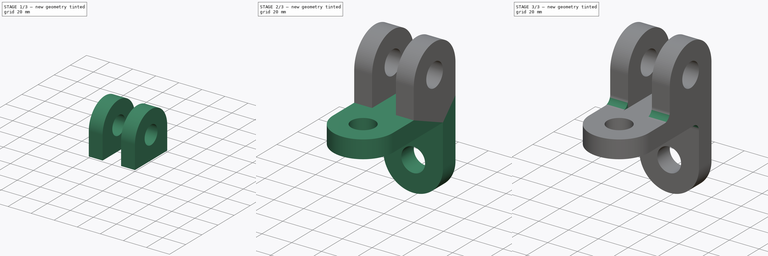
[diagram: build sequence overview — one tinted view per stage of 3, left to right]
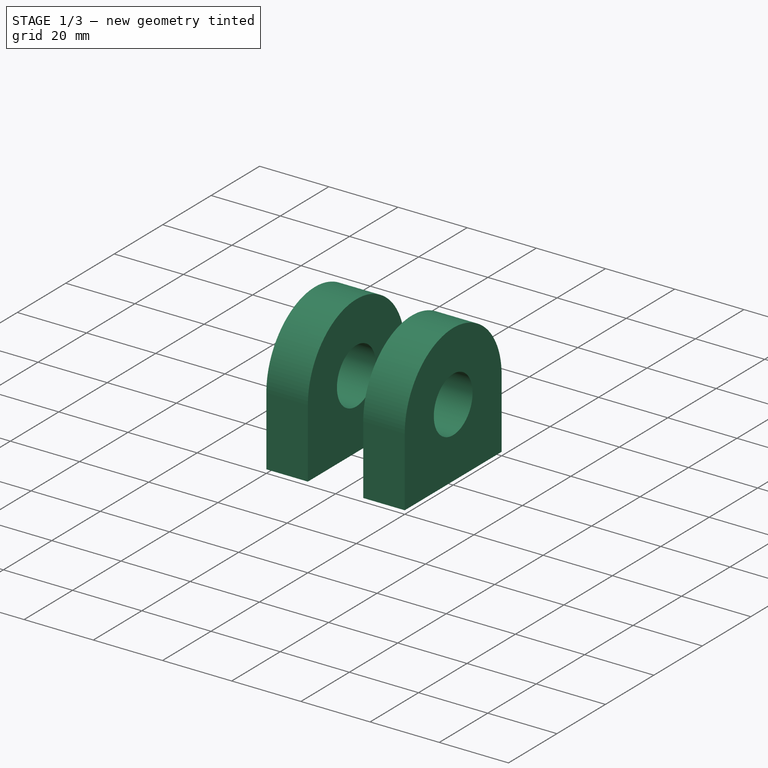
[diagram: stage 1 of 3 — iso view after this stage's code; geometry added in this stage tinted green]
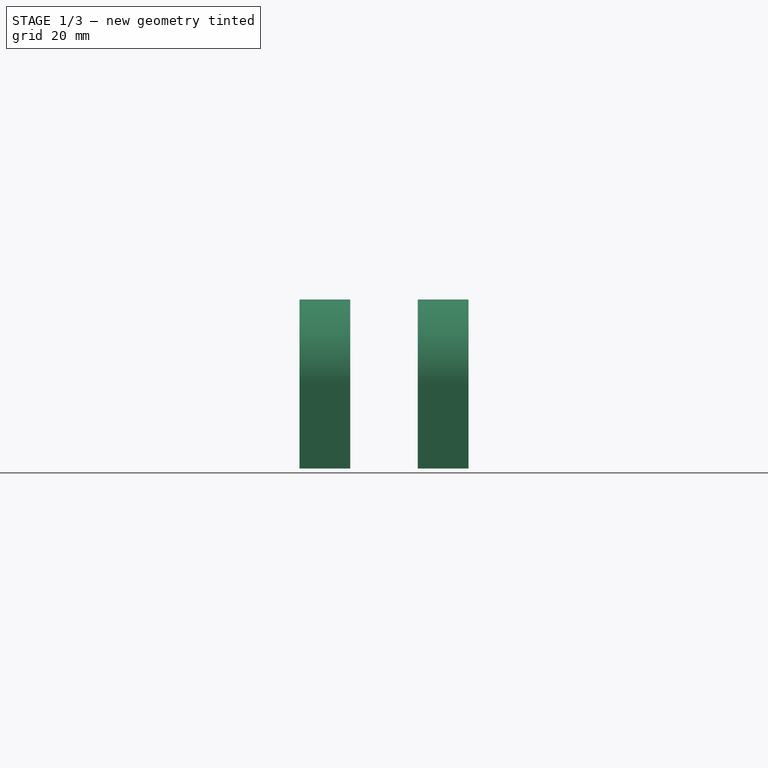
[diagram: stage 1 of 3 — front view after this stage's code; geometry added in this stage tinted green]
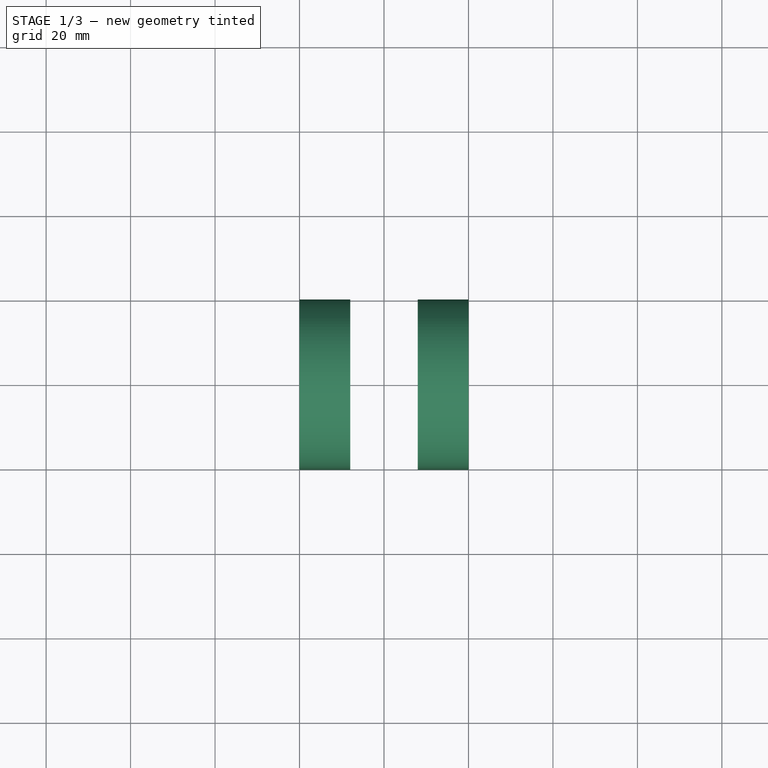
[diagram: stage 1 of 3 — top view after this stage's code; geometry added in this stage tinted green]
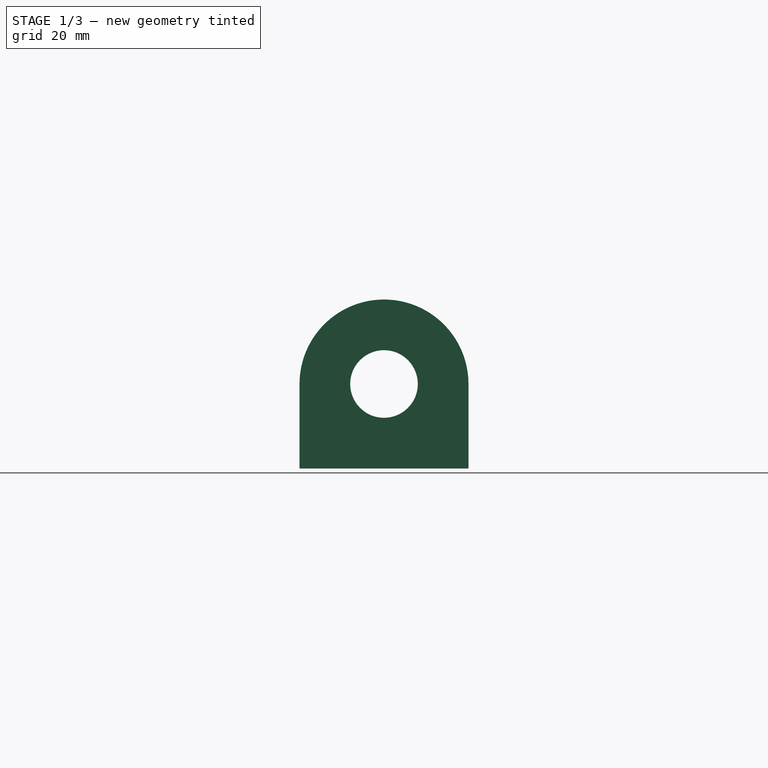
[diagram: stage 1 of 3 — right view after this stage's code; geometry added in this stage tinted green]
FCSTD DOCUMENT  (FreeCAD 0.16R)
Label: Fig 3.18 Final
License: All rights reserved
LicenseURL: http://en.wikipedia.org/wiki/All_rights_reserved
objects: Sketcher::SketchObject×4, PartDesign::Pad×4, PartDesign::Fillet×2, Part::MultiFuse×1, Part::Feature×1
note: 16 computed .brp shape members not serialized (recipe doc carries the construction recipe); baked Part::Feature solids carry a one-line shape summary decoded from their .brp

FEATURE [Sketcher::SketchObject] Sketch001
  Placement = pos=(-20,0,0) rot=(0.57735,0.57735,0.57735;2.0944rad)
  sketch-geometry (5):
    g0: LineSegment StartX=-40 StartY=32 StartZ=0 EndX=-40 EndY=12 EndZ=0
    g1: LineSegment StartX=-40 StartY=12 StartZ=0 EndX=0 EndY=12 EndZ=0
    g2: LineSegment StartX=-3.3043e-05 StartY=32 StartZ=0 EndX=0 EndY=12 EndZ=0
    g3: ArcOfCircle CenterX=-20 CenterY=32 CenterZ=0 NormalX=0 NormalY=0 NormalZ=1 Radius=20 StartAngle=8.699e-09 EndAngle=3.14159
    g4: Circle CenterX=-20 CenterY=32 CenterZ=0 NormalX=0 NormalY=0 NormalZ=1 Radius=8
  constraints (16):
    c: Vertical(g0)
    c: Coincident(g0,g1)
    c: Horizontal(g1)
    c: Radius(g3) = 20
    c: DistanceY(g0,g0) = 20
    c: Coincident(g3,g0)
    c: Coincident(g3,g2)
    c: Tangent(g0,g3)
    c: Coincident(g2,g1)
    c: Tangent(g2,g3)
    c: Coincident(g3,g0)
    c: DistanceY(g2,g2) = 20
    c: DistanceY(g-1,g1) = 12
    c: DistanceX(g1,g-1) = 0
    c: Coincident(g4,g3)
    c: Radius(g4) = 8
FEATURE [PartDesign::Pad] Pad001
  Length = 12
  Length2 = 100
  Placement = pos=(-20,0,0) rot=(0.57735,0.57735,0.57735;2.0944rad)
  Sketch = -> Sketch001
  Type = 0
FEATURE [Sketcher::SketchObject] Sketch002
  Placement = pos=(8,0,0) rot=(0.57735,0.57735,0.57735;2.0944rad)
  sketch-geometry (5):
    g0: LineSegment StartX=-40 StartY=32 StartZ=0 EndX=-40 EndY=12 EndZ=0
    g1: LineSegment StartX=-40 StartY=12 StartZ=0 EndX=0 EndY=12 EndZ=0
    g2: LineSegment StartX=-3.3043e-05 StartY=32 StartZ=0 EndX=0 EndY=12 EndZ=0
    g3: ArcOfCircle CenterX=-20 CenterY=32 CenterZ=0 NormalX=0 NormalY=0 NormalZ=1 Radius=20 StartAngle=8.699e-09 EndAngle=3.14159
    g4: Circle CenterX=-20 CenterY=32 CenterZ=0 NormalX=0 NormalY=0 NormalZ=1 Radius=8
  constraints (16):
    c: Vertical(g0)
    c: Coincident(g0,g1)
    c: Horizontal(g1)
    c: Radius(g3) = 20
    c: DistanceY(g0,g0) = 20
    c: Coincident(g3,g0)
    c: Coincident(g3,g2)
    c: Tangent(g0,g3)
    c: Coincident(g2,g1)
    c: Tangent(g2,g3)
    c: Coincident(g3,g0)
    c: DistanceY(g2,g2) = 20
    c: DistanceY(g-1,g1) = 12
    c: DistanceX(g1,g-1) = 0
    c: Coincident(g4,g3)
    c: Radius(g4) = 8
FEATURE [PartDesign::Pad] Pad002
  Length = 12
  Length2 = 100
  Placement = pos=(8,0,0) rot=(0.57735,0.57735,0.57735;2.0944rad)
  Sketch = -> Sketch002
  Type = 0
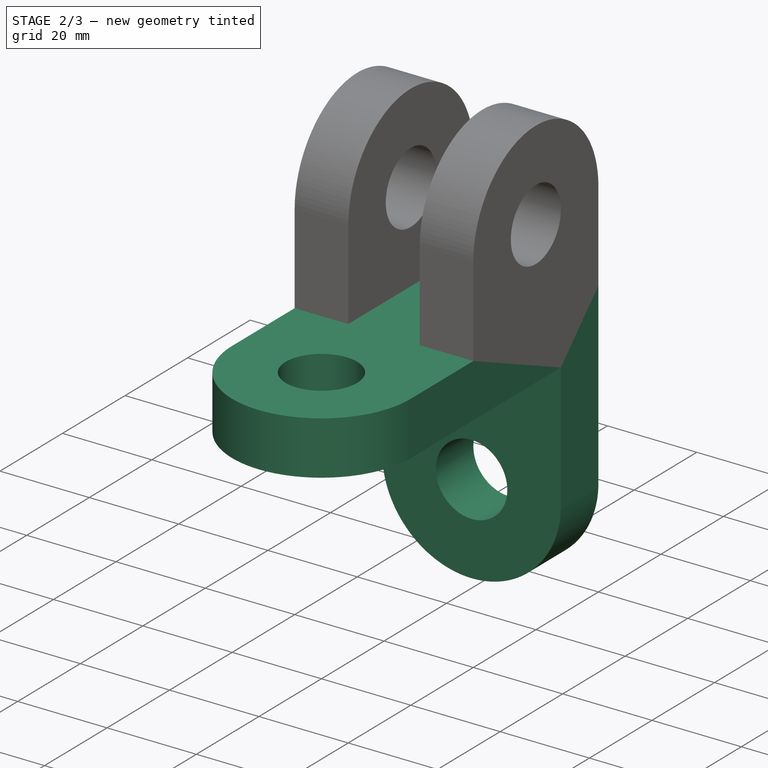
[diagram: stage 2 of 3 — iso view after this stage's code; geometry added in this stage tinted green]
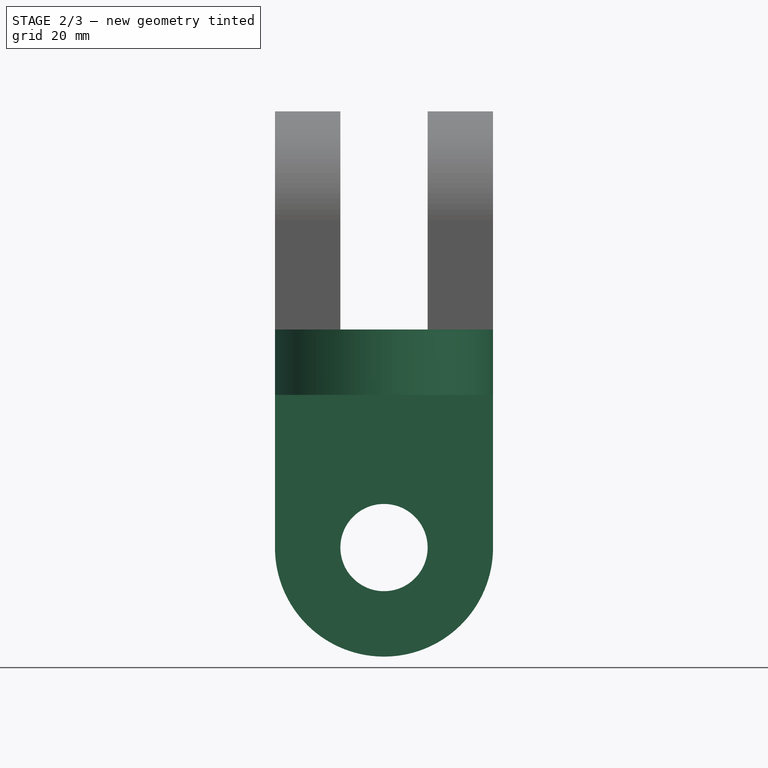
[diagram: stage 2 of 3 — front view after this stage's code; geometry added in this stage tinted green]
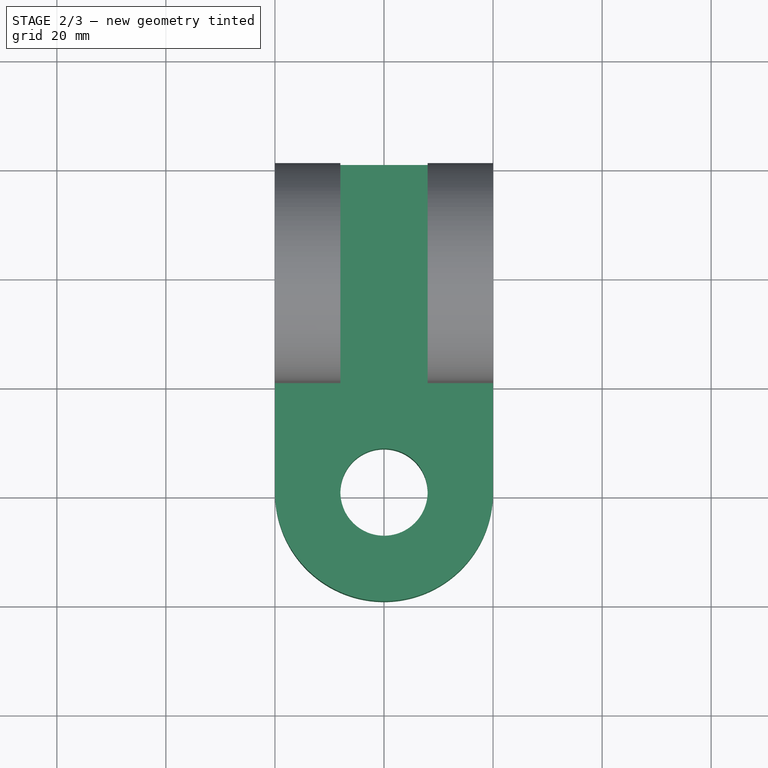
[diagram: stage 2 of 3 — top view after this stage's code; geometry added in this stage tinted green]
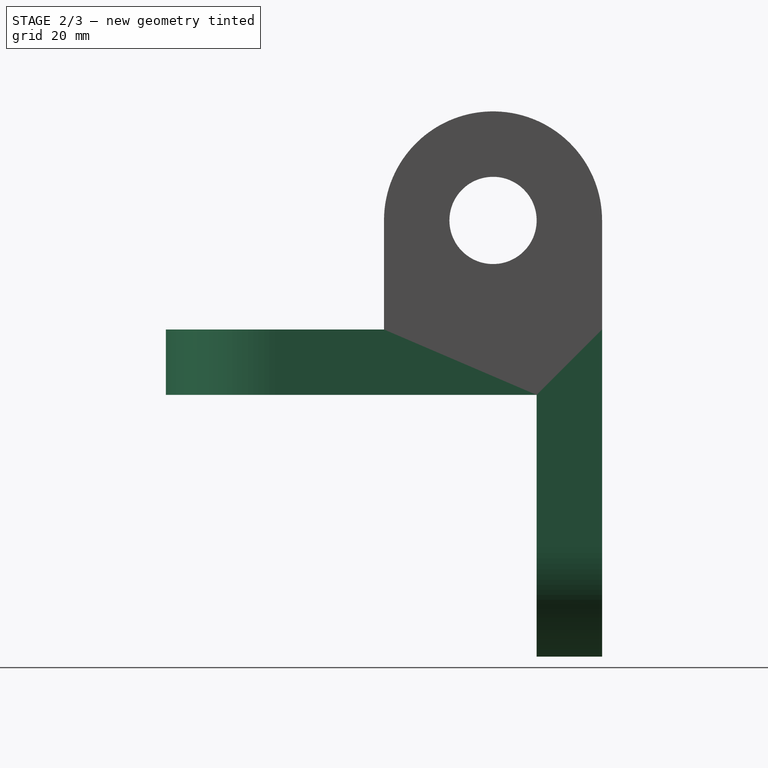
[diagram: stage 2 of 3 — right view after this stage's code; geometry added in this stage tinted green]
FEATURE [Sketcher::SketchObject] Sketch
  sketch-geometry (5):
    g0: LineSegment StartX=-20 StartY=-60 StartZ=0 EndX=-20 EndY=0 EndZ=0
    g1: LineSegment StartX=-20 StartY=0 StartZ=0 EndX=20 EndY=0 EndZ=0
    g2: LineSegment StartX=20 StartY=0 StartZ=0 EndX=20 EndY=-60 EndZ=0
    g3: ArcOfCircle CenterX=0 CenterY=-60 CenterZ=0 NormalX=0 NormalY=0 NormalZ=1 Radius=20 StartAngle=3.14159 EndAngle=6.28319
    g4: Circle CenterX=0 CenterY=-60 CenterZ=0 NormalX=0 NormalY=0 NormalZ=1 Radius=8
  constraints (15):
    c: Vertical(g0)
    c: Coincident(g0,g1)
    c: PointOnObject(g1,g-1)
    c: Coincident(g1,g2)
    c: Vertical(g2)
    c: DistanceX(g1,g1) = 40
    c: DistanceY(g0,g0) = 60
    c: Equal(g2,g0)
    c: Symmetric(g0,g1,g-2)
    c: PointOnObject(g3,g-2)
    c: Coincident(g4,g3)
    c: Radius(g4) = 8
    c: Coincident(g0,g3)
    c: Tangent(g0,g3)
    c: Coincident(g3,g2)
FEATURE [PartDesign::Pad] Pad
  Length = 12
  Length2 = 100
  Sketch = -> Sketch
  Type = 0
FEATURE [Part::MultiFuse] Fusion
  Shapes = -> [Pad002,Pad001,Pad]
FEATURE [Sketcher::SketchObject] Sketch003
  ExternalGeometry = -> [Fusion]
  Placement = pos=(0,0,0) rot=(0,0.707107,0.707107;3.14159rad)
  Support = -> Fusion [Face4]
  sketch-geometry (5):
    g0: Circle CenterX=0 CenterY=-28 CenterZ=0 NormalX=0 NormalY=0 NormalZ=1 Radius=8
    g1: LineSegment StartX=20 StartY=-28 StartZ=0 EndX=20 EndY=0 EndZ=0
    g2: LineSegment StartX=20 StartY=0 StartZ=0 EndX=-20 EndY=0 EndZ=0
    g3: LineSegment StartX=-20 StartY=0 StartZ=0 EndX=-20 EndY=-28 EndZ=0
    g4: ArcOfCircle CenterX=0 CenterY=-28 CenterZ=0 NormalX=0 NormalY=0 NormalZ=1 Radius=20 StartAngle=3.14159 EndAngle=6.28319
  constraints (13):
    c: Radius(g0) = 8
    c: DistanceY(g0,g-5) = 60
    c: Coincident(g1,g-3)
    c: Vertical(g1)
    c: Coincident(g1,g2)
    c: Coincident(g2,g-3)
    c: Coincident(g2,g3)
    c: Coincident(g4,g0)
    c: Coincident(g4,g3)
    c: Coincident(g4,g1)
    c: Radius(g4) = 20
    c: Tangent(g4,g3)
    c: Tangent(g4,g1)
FEATURE [PartDesign::Pad] Pad003
  Length = 12
  Length2 = 100
  Reversed = true
  Sketch = -> Sketch003
  Type = 0
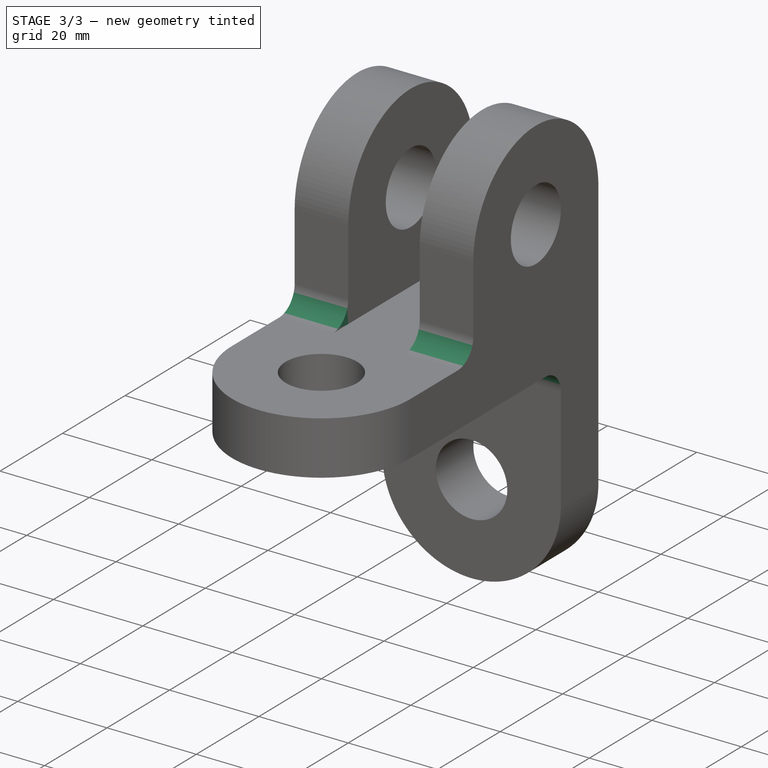
[diagram: stage 3 of 3 — iso view after this stage's code; geometry added in this stage tinted green]
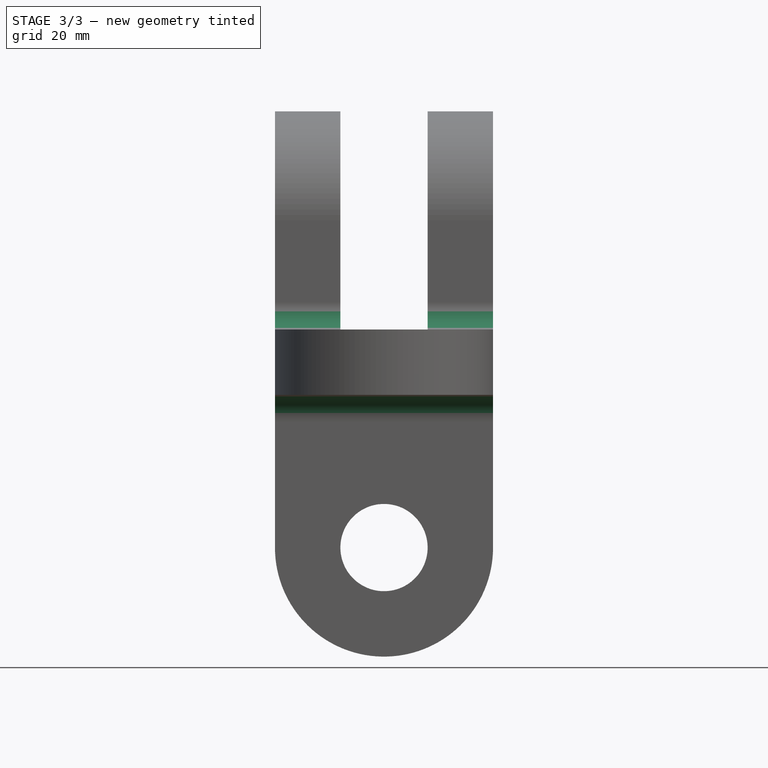
[diagram: stage 3 of 3 — front view after this stage's code; geometry added in this stage tinted green]
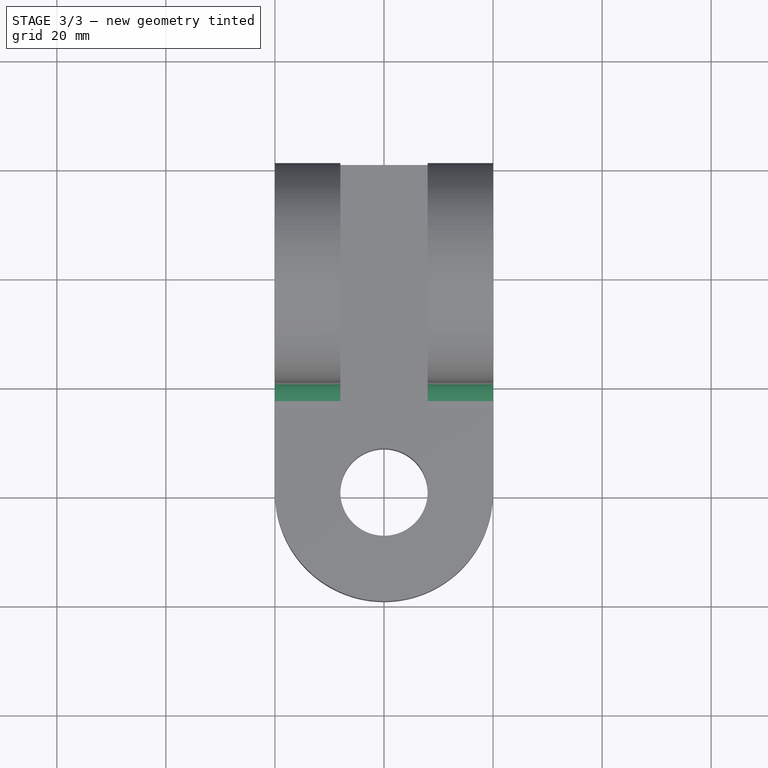
[diagram: stage 3 of 3 — top view after this stage's code; geometry added in this stage tinted green]
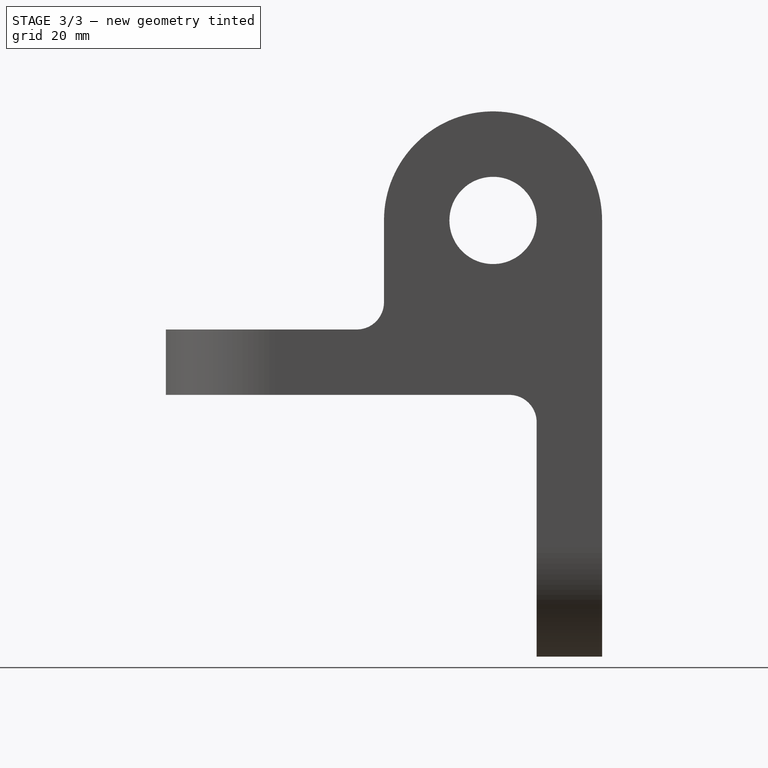
[diagram: stage 3 of 3 — right view after this stage's code; geometry added in this stage tinted green]
FEATURE [PartDesign::Fillet] Fillet
  Base = -> Pad003 [Edge10,Edge12]
  Radius = 5
FEATURE [PartDesign::Fillet] Fillet001
  Base = -> Fillet [Edge39]
  Radius = 5
FEATURE [Part::Feature] Fillet001001  label="Fillet002"
  shape: bbox 40 x 80 x 100 mm, 23 faces (baked)
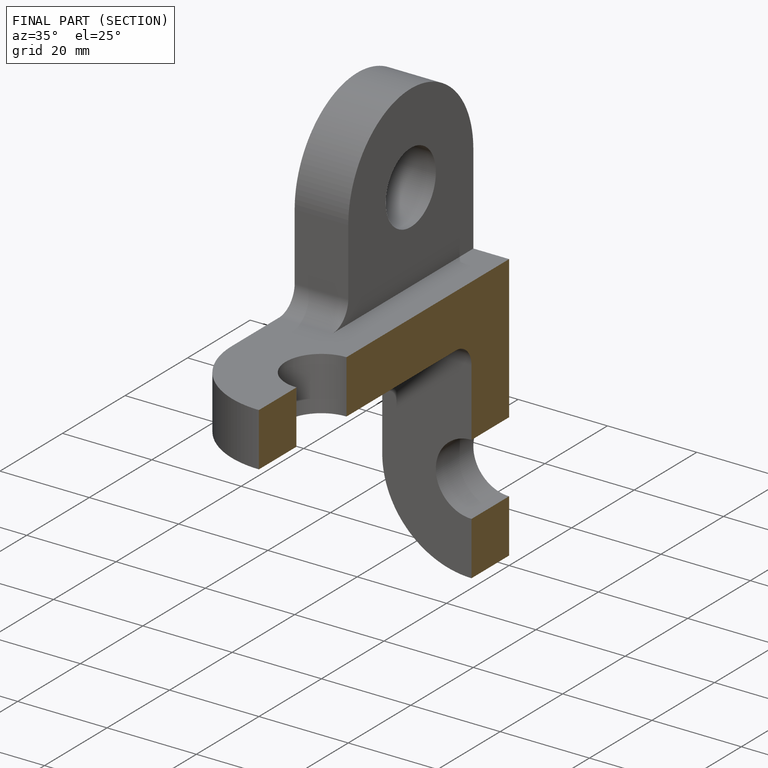
[diagram: finished part — half-section view (interior)]
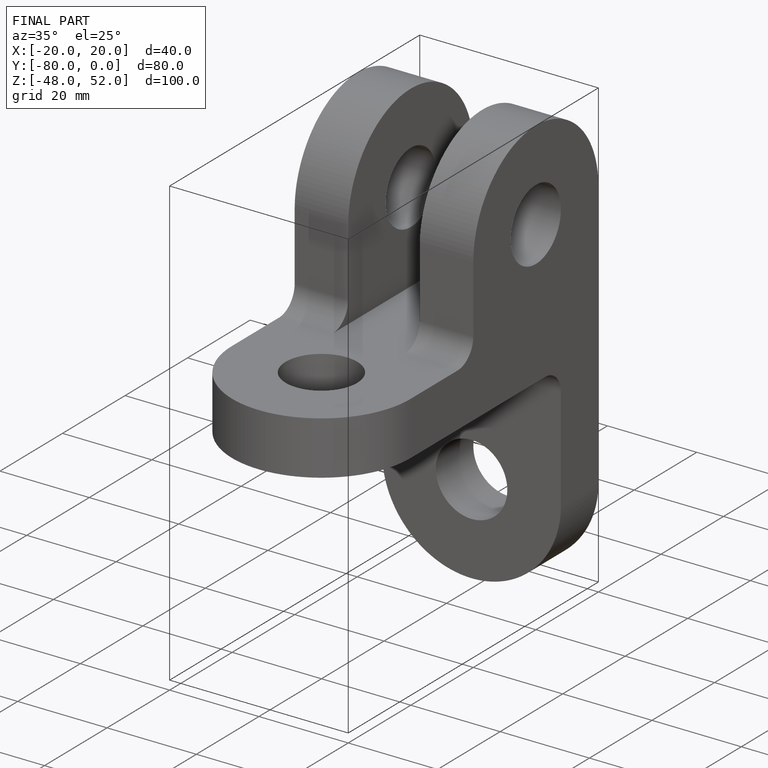
[diagram: finished part — iso view with bounding-box wireframe]
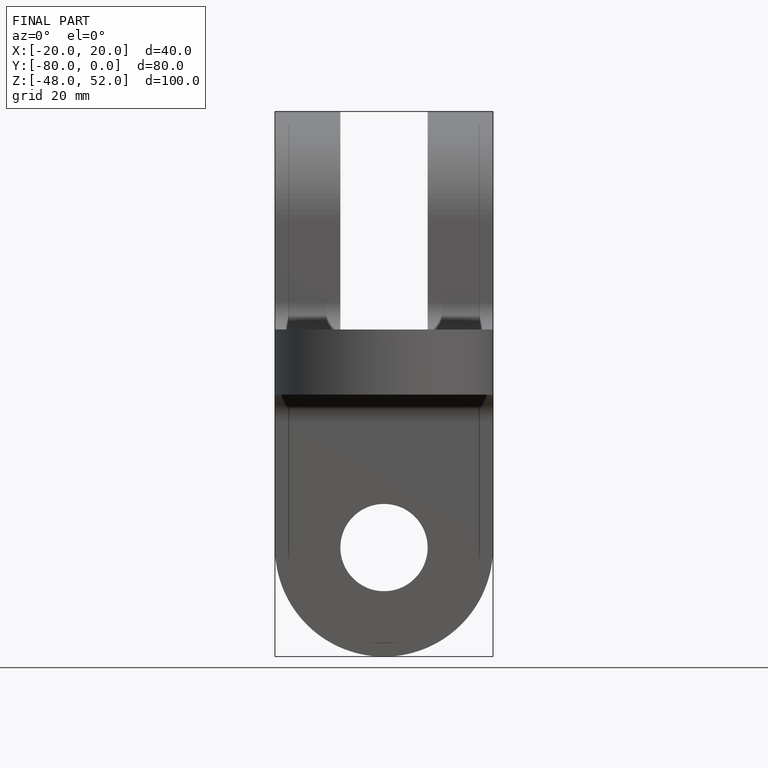
[diagram: finished part — front view with bounding-box wireframe]
